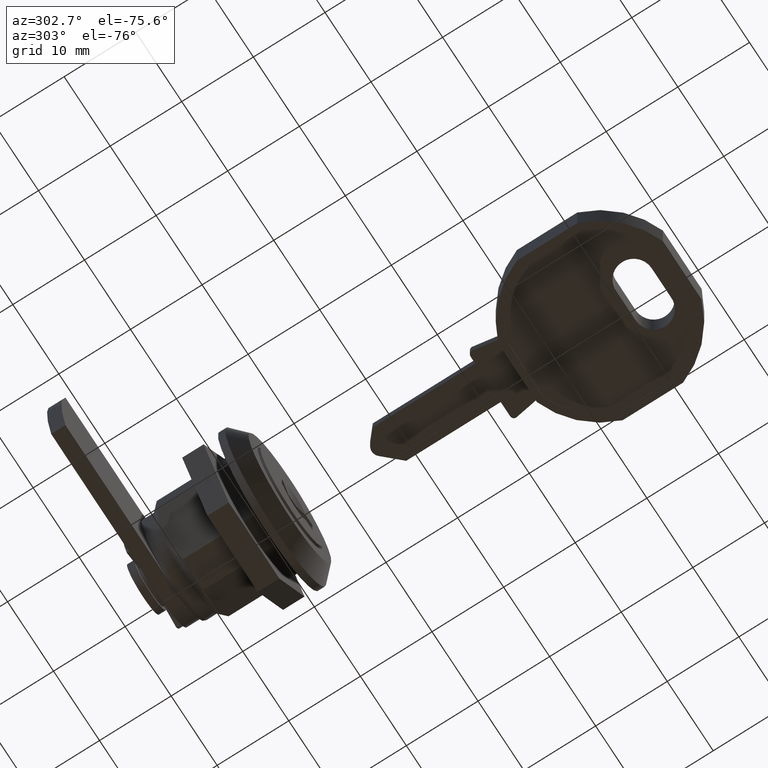
[diagram: clean part render]
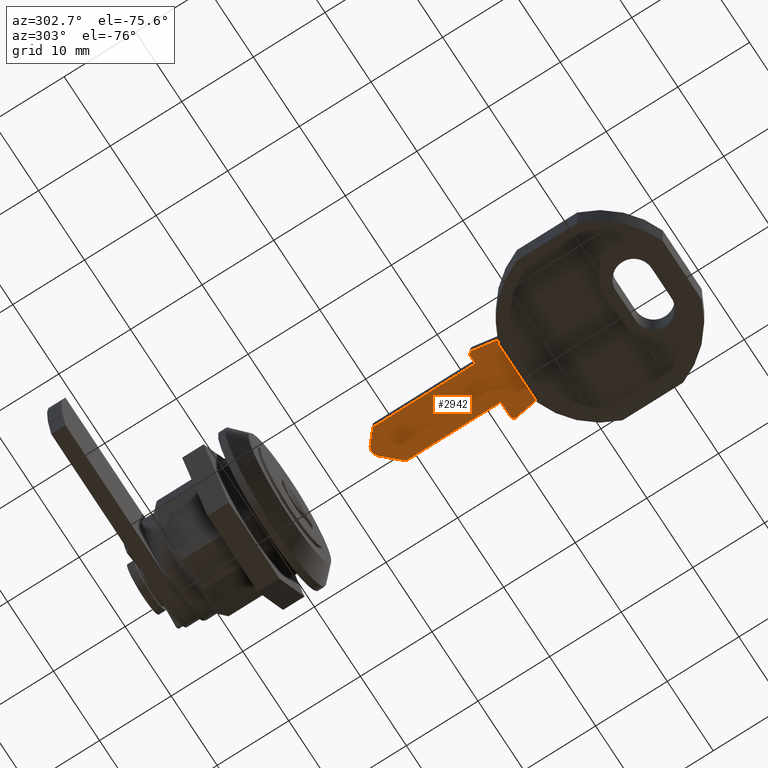
[diagram: same view with one face highlighted and labeled with its STEP entity id]
A machine part, auxiliary view. The second image highlights one B-rep face of the part: STEP entity #2942.
In plain terms, the highlighted face is a freeform B-spline surface patch.
Its self-contained STEP definition (entity closure, byte-faithful):
#2793=CARTESIAN_POINT('',(-30.077359176523320,-6.417889562382051,-0.900000000000000));
#2794=CARTESIAN_POINT('',(-8.275550799966837,-6.417889562382051,-0.900000000000000));
#2795=CARTESIAN_POINT('',(-30.077359176523320,4.167889906574223,-0.900000000000000));
#2796=CARTESIAN_POINT('',(-8.275550799966837,4.167889906574223,-0.900000000000000));
#2797=B_SPLINE_SURFACE_WITH_KNOTS('',1,1,((#2793,#2795),(#2794,#2796)),.UNSPECIFIED.,.F.,.F.,.U.,(2,2),(2,2),(0.0,21.801808376556480),(0.0,10.585779468956270),.UNSPECIFIED.);
#2798=CARTESIAN_POINT('',(-25.265630168171700,-5.437191656869090,-0.900000000000012));
#2799=VERTEX_POINT('',#2798);
#2800=CARTESIAN_POINT('',(-25.265630168171700,-3.375000106869410,-0.900000000000012));
#2801=VERTEX_POINT('',#2800);
#2802=CARTESIAN_POINT('',(-25.265630168171700,-5.437191656869090,-0.900000000000012));
#2803=CARTESIAN_POINT('',(-25.265630168171700,-3.375000106869410,-0.900000000000012));
#2804=QUASI_UNIFORM_CURVE('',1,(#2802,#2803),.UNSPECIFIED.,.F.,.U.);
#2805=EDGE_CURVE('',#2799,#2801,#2804,.T.);
#2806=ORIENTED_EDGE('',*,*,#2805,.F.);
#2807=CARTESIAN_POINT('',(-25.845828230417851,-5.930718047622290,-0.900000000000012));
#2808=VERTEX_POINT('',#2807);
#2809=CARTESIAN_POINT('',(-25.845828230417851,-5.930718047622305,-0.900000000000012));
#2810=CARTESIAN_POINT('',(-25.617708920147226,-5.967787435541285,-0.900000000000012));
#2811=CARTESIAN_POINT('',(-25.441669544159470,-5.818045332774961,-0.900000000000012));
#2812=CARTESIAN_POINT('',(-25.265630168171732,-5.668303230008638,-0.900000000000012));
#2813=CARTESIAN_POINT('',(-25.265630168171729,-5.437191656869090,-0.900000000000012));
#2821=(BOUNDED_CURVE()B_SPLINE_CURVE(2,(#2809,#2810,#2811,#2812,#2813),.UNSPECIFIED.,.F.,.U.)B_SPLINE_CURVE_WITH_KNOTS((3,2,3),(0.0,0.500000000000000,1.0),.UNSPECIFIED.)CURVE()GEOMETRIC_REPRESENTATION_ITEM()RATIONAL_B_SPLINE_CURVE((1.0,0.907722772862768,1.0,0.907722772862768,1.0))REPRESENTATION_ITEM(''));
#2822=EDGE_CURVE('',#2808,#2799,#2821,.T.);
#2823=ORIENTED_EDGE('',*,*,#2822,.F.);
#2824=CARTESIAN_POINT('',(-29.087268397181649,-5.403984020523380,-0.900000000000012));
#2825=VERTEX_POINT('',#2824);
#2826=CARTESIAN_POINT('',(-29.087268397181649,-5.403984020523380,-0.900000000000012));
#2827=CARTESIAN_POINT('',(-25.845828230417851,-5.930718047622290,-0.900000000000012));
#2828=QUASI_UNIFORM_CURVE('',1,(#2826,#2827),.UNSPECIFIED.,.F.,.U.);
#2829=EDGE_CURVE('',#2825,#2808,#2828,.T.);
#2830=ORIENTED_EDGE('',*,*,#2829,.F.);
#2831=CARTESIAN_POINT('',(-29.065630539396949,-5.345485954495921,-0.900000000000012));
#2832=VERTEX_POINT('',#2831);
#2833=CARTESIAN_POINT('',(-29.087268397181671,-5.403984020523375,-0.900000000000012));
#2834=CARTESIAN_POINT('',(-29.076375006420644,-5.374762530220480,-0.900000000000012));
#2835=CARTESIAN_POINT('',(-29.065630539396960,-5.345485954495922,-0.900000000000012));
#2843=(BOUNDED_CURVE()B_SPLINE_CURVE(2,(#2833,#2834,#2835),.UNSPECIFIED.,.F.,.U.)CURVE()GEOMETRIC_REPRESENTATION_ITEM()QUASI_UNIFORM_CURVE()RATIONAL_B_SPLINE_CURVE((1.0,0.999996759494751,1.0))REPRESENTATION_ITEM(''));
#2844=EDGE_CURVE('',#2825,#2832,#2843,.T.);
#2845=ORIENTED_EDGE('',*,*,#2844,.T.);
#2846=CARTESIAN_POINT('',(-29.065630539397048,3.095485954496125,-0.900000000000012));
#2847=VERTEX_POINT('',#2846);
#2848=CARTESIAN_POINT('',(-29.065630539397048,3.095485954496125,-0.900000000000012));
#2849=CARTESIAN_POINT('',(-29.065630539396949,-5.345485954495921,-0.900000000000012));
#2850=QUASI_UNIFORM_CURVE('',1,(#2848,#2849),.UNSPECIFIED.,.F.,.U.);
#2851=EDGE_CURVE('',#2847,#2832,#2850,.T.);
#2852=ORIENTED_EDGE('',*,*,#2851,.F.);
#2853=CARTESIAN_POINT('',(-29.087268397181649,3.153984020523350,-0.900000000000012));
#2854=VERTEX_POINT('',#2853);
#2855=CARTESIAN_POINT('',(-29.065630539397041,3.095485954496128,-0.900000000000012));
#2856=CARTESIAN_POINT('',(-29.076375006420637,3.124762530220437,-0.900000000000012));
#2857=CARTESIAN_POINT('',(-29.087268397181671,3.153984020523344,-0.900000000000012));
#2865=(BOUNDED_CURVE()B_SPLINE_CURVE(2,(#2855,#2856,#2857),.UNSPECIFIED.,.F.,.U.)CURVE()GEOMETRIC_REPRESENTATION_ITEM()QUASI_UNIFORM_CURVE()RATIONAL_B_SPLINE_CURVE((1.0,0.999996759494750,1.0))REPRESENTATION_ITEM(''));
#2866=EDGE_CURVE('',#2847,#2854,#2865,.T.);
#2867=ORIENTED_EDGE('',*,*,#2866,.T.);
#2868=CARTESIAN_POINT('',(-25.845828230417851,3.680718047622305,-0.900000000000012));
#2869=VERTEX_POINT('',#2868);
#2870=CARTESIAN_POINT('',(-25.845828230417851,3.680718047622305,-0.900000000000012));
#2871=CARTESIAN_POINT('',(-29.087268397181649,3.153984020523350,-0.900000000000012));
#2872=QUASI_UNIFORM_CURVE('',1,(#2870,#2871),.UNSPECIFIED.,.F.,.U.);
#2873=EDGE_CURVE('',#2869,#2854,#2872,.T.);
#2874=ORIENTED_EDGE('',*,*,#2873,.F.);
#2875=CARTESIAN_POINT('',(-25.265630168171700,3.187191656869205,-0.900000000000012));
#2876=VERTEX_POINT('',#2875);
#2877=CARTESIAN_POINT('',(-25.265630168171700,3.187191656869205,-0.900000000000012));
#2878=CARTESIAN_POINT('',(-25.265630168171725,3.418303230008636,-0.900000000000012));
#2879=CARTESIAN_POINT('',(-25.441669544159470,3.568045332774960,-0.900000000000012));
#2880=CARTESIAN_POINT('',(-25.617708920147219,3.717787435541284,-0.900000000000012));
#2881=CARTESIAN_POINT('',(-25.845828230417851,3.680718047622306,-0.900000000000012));
#2889=(BOUNDED_CURVE()B_SPLINE_CURVE(2,(#2877,#2878,#2879,#2880,#2881),.UNSPECIFIED.,.F.,.U.)B_SPLINE_CURVE_WITH_KNOTS((3,2,3),(0.0,0.500000000000000,1.0),.UNSPECIFIED.)CURVE()GEOMETRIC_REPRESENTATION_ITEM()RATIONAL_B_SPLINE_CURVE((1.0,0.907722772862769,1.0,0.907722772862769,1.0))REPRESENTATION_ITEM(''));
#2890=EDGE_CURVE('',#2876,#2869,#2889,.T.);
#2891=ORIENTED_EDGE('',*,*,#2890,.F.);
#2892=CARTESIAN_POINT('',(-25.265630168171700,2.175000156741590,-0.900000000000012));
#2893=VERTEX_POINT('',#2892);
#2894=CARTESIAN_POINT('',(-25.265630168171700,2.175000156741590,-0.900000000000012));
#2895=CARTESIAN_POINT('',(-25.265630168171700,3.187191656869205,-0.900000000000012));
#2896=QUASI_UNIFORM_CURVE('',1,(#2894,#2895),.UNSPECIFIED.,.F.,.U.);
#2897=EDGE_CURVE('',#2893,#2876,#2896,.T.);
#2898=ORIENTED_EDGE('',*,*,#2897,.F.);
#2899=CARTESIAN_POINT('',(-10.965629488958140,2.175000156741590,-0.900000000000012));
#2900=VERTEX_POINT('',#2899);
#2901=CARTESIAN_POINT('',(-10.965629488958140,2.175000156741590,-0.900000000000012));
#2902=CARTESIAN_POINT('',(-25.265630168171700,2.175000156741590,-0.900000000000012));
#2903=QUASI_UNIFORM_CURVE('',1,(#2901,#2902),.UNSPECIFIED.,.F.,.U.);
#2904=EDGE_CURVE('',#2900,#2893,#2903,.T.);
#2905=ORIENTED_EDGE('',*,*,#2904,.F.);
#2906=CARTESIAN_POINT('',(-9.555853432858141,0.535921639082017,-0.900000000000012));
#2907=VERTEX_POINT('',#2906);
#2908=CARTESIAN_POINT('',(-9.555853432858141,0.535921639082017,-0.900000000000012));
#2909=CARTESIAN_POINT('',(-10.965629488958140,2.175000156741590,-0.900000000000012));
#2910=QUASI_UNIFORM_CURVE('',1,(#2908,#2909),.UNSPECIFIED.,.F.,.U.);
#2911=EDGE_CURVE('',#2907,#2900,#2910,.T.);
#2912=ORIENTED_EDGE('',*,*,#2911,.F.);
#2913=CARTESIAN_POINT('',(-9.648086073558542,-1.124999999999488,-0.900000000000012));
#2914=VERTEX_POINT('',#2913);
#2915=CARTESIAN_POINT('',(-9.648086073558542,-1.124999999999488,-0.900000000000012));
#2916=CARTESIAN_POINT('',(-8.803431667884828,-0.338882799432813,-0.900000000000012));
#2917=CARTESIAN_POINT('',(-9.555853432858141,0.535921639082017,-0.900000000000012));
#2925=(BOUNDED_CURVE()B_SPLINE_CURVE(2,(#2915,#2916,#2917),.UNSPECIFIED.,.F.,.U.)CURVE()GEOMETRIC_REPRESENTATION_ITEM()QUASI_UNIFORM_CURVE()RATIONAL_B_SPLINE_CURVE((1.0,0.720825230167210,1.0))REPRESENTATION_ITEM(''));
#2926=EDGE_CURVE('',#2914,#2907,#2925,.T.);
#2927=ORIENTED_EDGE('',*,*,#2926,.F.);
#2928=CARTESIAN_POINT('',(-12.065629541211599,-3.375000106868810,-0.900000000000012));
#2929=VERTEX_POINT('',#2928);
#2930=CARTESIAN_POINT('',(-12.065629541211599,-3.375000106868810,-0.900000000000012));
#2931=CARTESIAN_POINT('',(-9.648086073558542,-1.124999999999488,-0.900000000000012));
#2932=QUASI_UNIFORM_CURVE('',1,(#2930,#2931),.UNSPECIFIED.,.F.,.U.);
#2933=EDGE_CURVE('',#2929,#2914,#2932,.T.);
#2934=ORIENTED_EDGE('',*,*,#2933,.F.);
#2935=CARTESIAN_POINT('',(-25.265630168171700,-3.375000106869410,-0.900000000000012));
#2936=CARTESIAN_POINT('',(-12.065629541211599,-3.375000106868810,-0.900000000000012));
#2937=QUASI_UNIFORM_CURVE('',1,(#2935,#2936),.UNSPECIFIED.,.F.,.U.);
#2938=EDGE_CURVE('',#2801,#2929,#2937,.T.);
#2939=ORIENTED_EDGE('',*,*,#2938,.F.);
#2940=EDGE_LOOP('',(#2806,#2823,#2830,#2845,#2852,#2867,#2874,#2891,#2898,#2905,#2912,#2927,#2934,#2939));
#2941=FACE_OUTER_BOUND('',#2940,.T.);
#2942=ADVANCED_FACE('',(#2941),#2797,.F.);